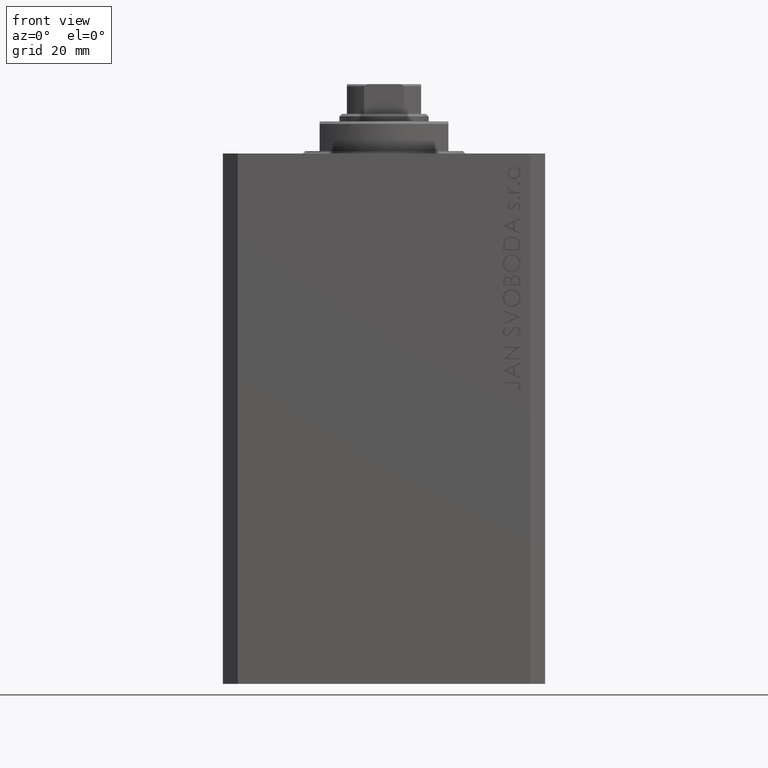
[diagram: clean part render]
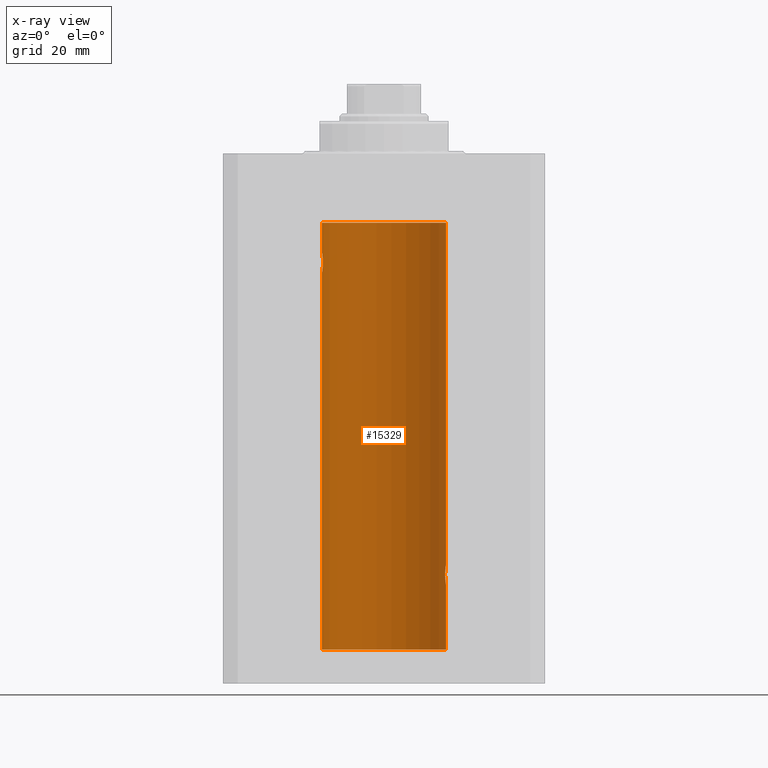
[diagram: x-ray — body ghosted, one internal face saturated and labeled with its STEP entity id]
A machine part, front view, then the same camera in x-ray: the body is ghosted and one INTERNAL B-rep face — a face not visible from any outside direction — is saturated and labeled: STEP entity #15329.
In plain terms, the highlighted cylindrical surface (partial cylindrical patch) has radius 12.5 mm, axis along (0, 0, 1).
Its self-contained STEP definition (entity closure, byte-faithful):
#215 = CARTESIAN_POINT ( 'NONE',  ( -12.50000000000000000, 1.867773856434666690E-17, -20.00000000000000000 ) ) ;
#1145 = ORIENTED_EDGE ( 'NONE', *, *, #8387, .T. ) ;
#1389 = CARTESIAN_POINT ( 'NONE',  ( -12.50000000000000000, 1.530808498934191521E-15, -100.0999999999999943 ) ) ;
#1449 = CARTESIAN_POINT ( 'NONE',  ( 12.48390005916863110, 0.6457215011736527899, -86.89742771554266199 ) ) ;
#1511 = CARTESIAN_POINT ( 'NONE',  ( -12.46903010196599304, 0.8876934327478135378, -20.20300788371381984 ) ) ;
#1704 = CARTESIAN_POINT ( 'NONE',  ( 12.33896267925302581, 2.000000000000247358, -84.86934705949914814 ) ) ;
#1784 = EDGE_CURVE ( 'NONE', #30768, #19045, #26084, .T. ) ;
#1937 = CARTESIAN_POINT ( 'NONE',  ( 12.49788668346399945, 0.2632864803365707607, -83.01308975838333026 ) ) ;
#1971 = CARTESIAN_POINT ( 'NONE',  ( -12.50000000000000000, 0.1323736289504353625, -20.00000000000000000 ) ) ;
#2589 = CYLINDRICAL_SURFACE ( 'NONE', #8442, 12.50000000000000000 ) ;
#2855 = DIRECTION ( 'NONE',  ( -0.000000000000000000, -0.000000000000000000, 1.000000000000000000 ) ) ;
#3426 = VERTEX_POINT ( 'NONE', #35197 ) ;
#4323 = EDGE_CURVE ( 'NONE', #47104, #3426, #34782, .T. ) ;
#4652 = EDGE_CURVE ( 'NONE', #30768, #3426, #8880, .T. ) ;
#5033 = CARTESIAN_POINT ( 'NONE',  ( 12.49789833780794446, 0.2625555164371021766, -86.98698170822147802 ) ) ;
#5044 = VERTEX_POINT ( 'NONE', #11896 ) ;
#5058 = CARTESIAN_POINT ( 'NONE',  ( 12.46910683544638232, 0.8866026273585037032, -83.20247863689694157 ) ) ;
#5089 = CARTESIAN_POINT ( 'NONE',  ( -12.50000000000000000, 1.867773856434666690E-17, -20.00000000000000000 ) ) ;
#5314 = CARTESIAN_POINT ( 'NONE',  ( -12.48990118705761532, 0.5184196815546056047, -20.06395648222637007 ) ) ;
#5544 = CARTESIAN_POINT ( 'NONE',  ( -12.48394649977302073, 0.6448065707253024526, -23.89773031393659153 ) ) ;
#5787 = CARTESIAN_POINT ( 'NONE',  ( -12.34109209020652465, 1.986986967296539897, -22.26269462454597914 ) ) ;
#6616 = ORIENTED_EDGE ( 'NONE', *, *, #4652, .T. ) ;
#6637 = FACE_OUTER_BOUND ( 'NONE', #33808, .T. ) ;
#7056 = CARTESIAN_POINT ( 'NONE',  ( 12.50000000000000000, 0.000000000000000000, -100.0999999999999943 ) ) ;
#7106 = EDGE_CURVE ( 'NONE', #26553, #19045, #8638, .T. ) ;
#7932 = ORIENTED_EDGE ( 'NONE', *, *, #40256, .T. ) ;
#8374 = CARTESIAN_POINT ( 'NONE',  ( 12.46901623405144122, 0.8878913781257877780, -86.79689651717548315 ) ) ;
#8387 = EDGE_CURVE ( 'NONE', #5044, #39312, #26892, .T. ) ;
#8442 = AXIS2_PLACEMENT_3D ( 'NONE', #14270, #28849, #42927 ) ;
#8603 = CARTESIAN_POINT ( 'NONE',  ( 12.33896267925302759, 2.000000000000248246, -85.26143174220784715 ) ) ;
#8638 = CIRCLE ( 'NONE', #46786, 12.50000000000000000 ) ;
#8751 = CARTESIAN_POINT ( 'NONE',  ( 0.000000000000000000, 0.000000000000000000, -100.0999999999999943 ) ) ;
#8880 = B_SPLINE_CURVE_WITH_KNOTS ( 'NONE', 3,
 ( #5089, #1971, #16759, #5314, #34205, #1511, #30625, #12473, #20347, #16518, #27515, #27050, #41609, #31089, #5787, #45648, #13178, #42070, #16286, #30857, #34905, #45414, #38255, #9359, #23932, #5544, #27753, #42312, #38727, #21076 ),
 .UNSPECIFIED., .F., .F.,
 ( 4, 2, 2, 2, 2, 2, 2, 2, 2, 2, 2, 2, 2, 2, 4 ),
 ( 1.814683826656258666E-20, 0.0003914362731607577369, 0.0007828725463215154739, 0.001174308819482273265, 0.001565745092643030948, 0.002348617638964546530, 0.003131490185286061895, 0.003522926458446825216, 0.003914362731607588103, 0.004305799004768351423, 0.004697235277929114744, 0.005088671551089878065, 0.005480107824250641385, 0.005871544097411404706, 0.006262980370572168026 ),
 .UNSPECIFIED. ) ;
#9084 = CARTESIAN_POINT ( 'NONE',  ( 12.44079117518645639, 1.220047488436368122, -83.40989676335082947 ) ) ;
#9359 = CARTESIAN_POINT ( 'NONE',  ( -12.46009879577771606, 1.003863686549169465, -23.73470742397611843 ) ) ;
#9453 = DIRECTION ( 'NONE',  ( 1.000000000000000000, 0.000000000000000000, 0.000000000000000000 ) ) ;
#10267 = CIRCLE ( 'NONE', #14852, 12.50000000000000000 ) ;
#11896 = CARTESIAN_POINT ( 'NONE',  ( 12.33896267925302759, 2.000000000000247802, -84.99999999999998579 ) ) ;
#11985 = CARTESIAN_POINT ( 'NONE',  ( -12.50000000000000000, 1.530808498934191521E-15, -100.0999999999999943 ) ) ;
#12208 = CARTESIAN_POINT ( 'NONE',  ( 12.46011632531798874, 1.003644408234883434, -83.26516799687671266 ) ) ;
#12473 = CARTESIAN_POINT ( 'NONE',  ( -12.44082361696003503, 1.219754986802281449, -20.40963319990594016 ) ) ;
#12667 = CARTESIAN_POINT ( 'NONE',  ( 12.43037348241797524, 1.320834183883837554, -83.49243837704291593 ) ) ;
#12813 = DIRECTION ( 'NONE',  ( -0.000000000000000000, -0.000000000000000000, 1.000000000000000000 ) ) ;
#13178 = CARTESIAN_POINT ( 'NONE',  ( -12.35517291625592051, 1.897967064543089721, -22.64415233770293412 ) ) ;
#14270 = CARTESIAN_POINT ( 'NONE',  ( 0.000000000000000000, 0.000000000000000000, -100.0999999999999943 ) ) ;
#14852 = AXIS2_PLACEMENT_3D ( 'NONE', #8751, #42163, #9453 ) ;
#15329 = ADVANCED_FACE ( 'NONE', ( #6637 ), #2589, .F. ) ;
#15811 = VERTEX_POINT ( 'NONE', #7056 ) ;
#15887 = CARTESIAN_POINT ( 'NONE',  ( 12.50000000000000000, -7.266276684081261841E-23, -82.99999999999998579 ) ) ;
#16062 = DIRECTION ( 'NONE',  ( 1.000000000000000000, 0.000000000000000000, 0.000000000000000000 ) ) ;
#16253 = CARTESIAN_POINT ( 'NONE',  ( 12.35520276972935427, 1.897773362058238877, -84.35528278634336630 ) ) ;
#16286 = CARTESIAN_POINT ( 'NONE',  ( -12.37922086519035325, 1.734998657226764829, -23.00335814299181436 ) ) ;
#16486 = CARTESIAN_POINT ( 'NONE',  ( 12.49999999999999822, 0.1306079576516667173, -82.99999999999997158 ) ) ;
#16518 = CARTESIAN_POINT ( 'NONE',  ( -12.39873273758732175, 1.598680238462371062, -20.77033506126851137 ) ) ;
#16759 = CARTESIAN_POINT ( 'NONE',  ( -12.49789934882883458, 0.2624928479599910047, -20.01301208516349917 ) ) ;
#17647 = CARTESIAN_POINT ( 'NONE',  ( 12.50000000000000000, 0.000000000000000000, -100.0999999999999943 ) ) ;
#17956 = CARTESIAN_POINT ( 'NONE',  ( 12.50000000000000000, 2.320363022323678888E-15, -87.00000000000000000 ) ) ;
#19045 = VERTEX_POINT ( 'NONE', #19463 ) ;
#19463 = CARTESIAN_POINT ( 'NONE',  ( -12.50000000000000000, 1.530808498934191521E-15, -13.99999999999999822 ) ) ;
#19586 = CARTESIAN_POINT ( 'NONE',  ( 12.34779119491631683, 1.947363444907009633, -85.52502775168252924 ) ) ;
#19627 = ORIENTED_EDGE ( 'NONE', *, *, #7106, .T. ) ;
#20041 = CARTESIAN_POINT ( 'NONE',  ( 12.43016561391612917, 1.322713721413880661, -86.50578877836700542 ) ) ;
#20072 = CARTESIAN_POINT ( 'NONE',  ( 12.48983962833819028, 0.5199974825204898288, -83.06435160808017315 ) ) ;
#20347 = CARTESIAN_POINT ( 'NONE',  ( -12.43019346654084956, 1.322451657002078340, -20.49398366327208620 ) ) ;
#21076 = CARTESIAN_POINT ( 'NONE',  ( -12.50000000000000000, 1.530808426276628993E-15, -23.99999999999999645 ) ) ;
#21676 = EDGE_CURVE ( 'NONE', #25396, #5044, #23175, .T. ) ;
#21846 = LINE ( 'NONE', #29484, #45730 ) ;
#23175 = B_SPLINE_CURVE_WITH_KNOTS ( 'NONE', 3,
 ( #26522, #27219, #5033, #30105, #1449, #8374, #37502, #37737, #20041, #41077, #41317, #19586, #8603, #45355 ),
 .UNSPECIFIED., .F., .F.,
 ( 4, 2, 2, 2, 2, 2, 4 ),
 ( 2.254408494944823136E-18, 0.0003915305205218102386, 0.0007830610410436180920, 0.001174591561565426108, 0.001566122082087234016, 0.002349183123130850048, 0.003132244164174466730 ),
 .UNSPECIFIED. ) ;
#23197 = CARTESIAN_POINT ( 'NONE',  ( 12.34110728646152388, 1.986893050944454453, -84.73661347764983987 ) ) ;
#23424 = CARTESIAN_POINT ( 'NONE',  ( 12.33896267925302759, 2.000000000000247802, -84.99999999999998579 ) ) ;
#23658 = CARTESIAN_POINT ( 'NONE',  ( 12.48395395845270528, 0.6446573166014707423, -83.10222124213517247 ) ) ;
#23894 = CARTESIAN_POINT ( 'NONE',  ( 12.34924836377099844, 1.935649219704934865, -84.48002062127160627 ) ) ;
#23932 = CARTESIAN_POINT ( 'NONE',  ( -12.46909283808506430, 0.8868029758979402155, -23.79742491916155345 ) ) ;
#23934 = CARTESIAN_POINT ( 'NONE',  ( 0.000000000000000000, 0.000000000000000000, -13.99999999999999822 ) ) ;
#24793 = VECTOR ( 'NONE', #26554, 1000.000000000000000 ) ;
#25396 = VERTEX_POINT ( 'NONE', #17956 ) ;
#26084 = LINE ( 'NONE', #11985, #24793 ) ;
#26522 = CARTESIAN_POINT ( 'NONE',  ( 12.50000000000000000, 2.320363022323678888E-15, -87.00000000000000000 ) ) ;
#26553 = VERTEX_POINT ( 'NONE', #46972 ) ;
#26554 = DIRECTION ( 'NONE',  ( -0.000000000000000000, -0.000000000000000000, 1.000000000000000000 ) ) ;
#26892 = B_SPLINE_CURVE_WITH_KNOTS ( 'NONE', 3,
 ( #23424, #1704, #23197, #23894, #16253, #38455, #30819, #44916, #37765, #12667, #9084, #12208, #5058, #23658, #20072, #1937, #16486, #27480 ),
 .UNSPECIFIED., .F., .F.,
 ( 4, 2, 2, 2, 2, 2, 2, 2, 4 ),
 ( 0.003132244164174466730, 0.003523586189974241625, 0.003914928215774016521, 0.004306270241573791416, 0.004697612267373566311, 0.005088954293173341206, 0.005480296318973116101, 0.005871638344772890997, 0.006262980370572665892 ),
 .UNSPECIFIED. ) ;
#27050 = CARTESIAN_POINT ( 'NONE',  ( -12.34781876294798053, 1.947190906025043633, -21.47436412829509678 ) ) ;
#27219 = CARTESIAN_POINT ( 'NONE',  ( 12.50000000000000178, 0.1324055009716466613, -87.00000000000002842 ) ) ;
#27480 = CARTESIAN_POINT ( 'NONE',  ( 12.50000000000000000, -7.266276684081261841E-23, -82.99999999999998579 ) ) ;
#27515 = CARTESIAN_POINT ( 'NONE',  ( -12.37764291807175354, 1.747608771958140794, -20.99316879552500481 ) ) ;
#27753 = CARTESIAN_POINT ( 'NONE',  ( -12.48983485452574982, 0.5201193324741355539, -23.93561774521849372 ) ) ;
#28160 = LINE ( 'NONE', #17647, #44818 ) ;
#28849 = DIRECTION ( 'NONE',  ( -0.000000000000000000, -0.000000000000000000, 1.000000000000000000 ) ) ;
#29484 = CARTESIAN_POINT ( 'NONE',  ( 12.50000000000000000, 0.000000000000000000, -100.0999999999999943 ) ) ;
#29686 = EDGE_CURVE ( 'NONE', #15811, #47104, #10267, .T. ) ;
#30105 = CARTESIAN_POINT ( 'NONE',  ( 12.48989642018887736, 0.5185418732824252919, -86.93601292187604201 ) ) ;
#30280 = ORIENTED_EDGE ( 'NONE', *, *, #21676, .T. ) ;
#30394 = DIRECTION ( 'NONE',  ( 0.000000000000000000, 0.000000000000000000, 1.000000000000000000 ) ) ;
#30625 = CARTESIAN_POINT ( 'NONE',  ( -12.46021263690096958, 1.002494658017156981, -20.26446744561863156 ) ) ;
#30768 = VERTEX_POINT ( 'NONE', #215 ) ;
#30819 = CARTESIAN_POINT ( 'NONE',  ( 12.37925647381943506, 1.734744884174218571, -83.99620732598648942 ) ) ;
#30857 = CARTESIAN_POINT ( 'NONE',  ( -12.39864157855465088, 1.590288205413973532, -23.21980790594580313 ) ) ;
#31089 = CARTESIAN_POINT ( 'NONE',  ( -12.33895470450623044, 2.000049200055401766, -22.12992629360264729 ) ) ;
#33808 = EDGE_LOOP ( 'NONE', ( #40887, #43755, #39565, #30280, #1145, #7932, #19627, #39086, #6616 ) ) ;
#34205 = CARTESIAN_POINT ( 'NONE',  ( -12.48390768591463207, 0.6455696738844916016, -20.10252270298193977 ) ) ;
#34782 = LINE ( 'NONE', #1389, #38582 ) ;
#34905 = CARTESIAN_POINT ( 'NONE',  ( -12.40913174964213184, 1.507394620545641439, -23.32102833500698225 ) ) ;
#35197 = CARTESIAN_POINT ( 'NONE',  ( -12.50000000000000000, 1.530808426276628993E-15, -23.99999999999999645 ) ) ;
#36876 = DIRECTION ( 'NONE',  ( -0.000000000000000000, -0.000000000000000000, 1.000000000000000000 ) ) ;
#37502 = CARTESIAN_POINT ( 'NONE',  ( 12.46019522898365217, 1.002712894177336223, -86.73540896027598990 ) ) ;
#37737 = CARTESIAN_POINT ( 'NONE',  ( 12.44079900692650931, 1.220007525301739282, -86.59017579083662497 ) ) ;
#37765 = CARTESIAN_POINT ( 'NONE',  ( 12.40916530024876430, 1.507117913375715990, -83.67865955049002480 ) ) ;
#37900 = EDGE_CURVE ( 'NONE', #15811, #25396, #28160, .T. ) ;
#38255 = CARTESIAN_POINT ( 'NONE',  ( -12.44076681548080288, 1.220297236145718944, -23.58991408680628155 ) ) ;
#38455 = CARTESIAN_POINT ( 'NONE',  ( 12.37021546997940291, 1.797317011867403114, -84.11295119741077997 ) ) ;
#38582 = VECTOR ( 'NONE', #12813, 1000.000000000000000 ) ;
#38727 = CARTESIAN_POINT ( 'NONE',  ( -12.50000000000000533, 0.1306394121199390135, -24.00000000000000711 ) ) ;
#39086 = ORIENTED_EDGE ( 'NONE', *, *, #1784, .F. ) ;
#39312 = VERTEX_POINT ( 'NONE', #15887 ) ;
#39565 = ORIENTED_EDGE ( 'NONE', *, *, #37900, .T. ) ;
#40256 = EDGE_CURVE ( 'NONE', #39312, #26553, #21846, .T. ) ;
#40887 = ORIENTED_EDGE ( 'NONE', *, *, #4323, .F. ) ;
#41077 = CARTESIAN_POINT ( 'NONE',  ( 12.39869754437268590, 1.598954131913722820, -86.22932152813008599 ) ) ;
#41317 = CARTESIAN_POINT ( 'NONE',  ( 12.37760587642916477, 1.747868572747719229, -86.00639653169000098 ) ) ;
#41609 = CARTESIAN_POINT ( 'NONE',  ( -12.33897869807161385, 1.999901172190678089, -21.73788193668374547 ) ) ;
#42070 = CARTESIAN_POINT ( 'NONE',  ( -12.37018026341338839, 1.797558627508998086, -22.88656313533016373 ) ) ;
#42163 = DIRECTION ( 'NONE',  ( 0.000000000000000000, 0.000000000000000000, 1.000000000000000000 ) ) ;
#42312 = CARTESIAN_POINT ( 'NONE',  ( -12.49788564268284041, 0.2633501011236127343, -23.98690384766255335 ) ) ;
#42927 = DIRECTION ( 'NONE',  ( 1.000000000000000000, 0.000000000000000000, 0.000000000000000000 ) ) ;
#43755 = ORIENTED_EDGE ( 'NONE', *, *, #29686, .F. ) ;
#44818 = VECTOR ( 'NONE', #2855, 1000.000000000000000 ) ;
#44916 = CARTESIAN_POINT ( 'NONE',  ( 12.39867611624532806, 1.590019252152828910, -83.77984495929609920 ) ) ;
#45155 = CARTESIAN_POINT ( 'NONE',  ( -12.50000000000000000, 1.530808498934191521E-15, -100.0999999999999943 ) ) ;
#45355 = CARTESIAN_POINT ( 'NONE',  ( 12.33896267925302759, 2.000000000000247802, -84.99999999999998579 ) ) ;
#45414 = CARTESIAN_POINT ( 'NONE',  ( -12.43034574091277911, 1.321095788880539024, -23.50733550364322255 ) ) ;
#45648 = CARTESIAN_POINT ( 'NONE',  ( -12.34922241902463114, 1.935814255713574239, -22.51937350851555308 ) ) ;
#45730 = VECTOR ( 'NONE', #36876, 1000.000000000000000 ) ;
#46786 = AXIS2_PLACEMENT_3D ( 'NONE', #23934, #30394, #16062 ) ;
#46972 = CARTESIAN_POINT ( 'NONE',  ( 12.50000000000000000, 0.000000000000000000, -13.99999999999999822 ) ) ;
#47104 = VERTEX_POINT ( 'NONE', #45155 ) ;